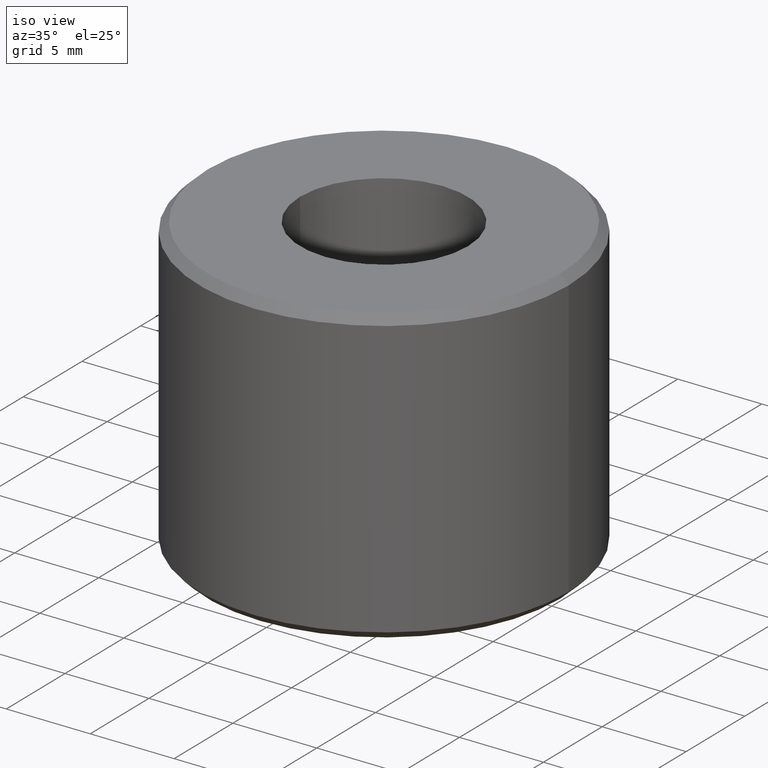
[diagram: clean part render]
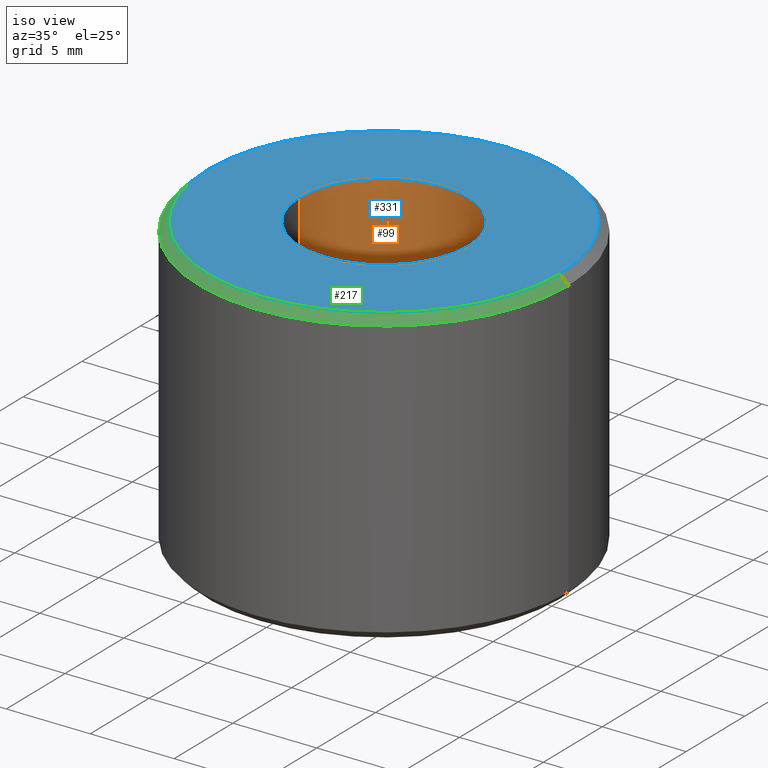
[diagram: same view with three faces highlighted in distinct colors, each labeled with its STEP entity id]
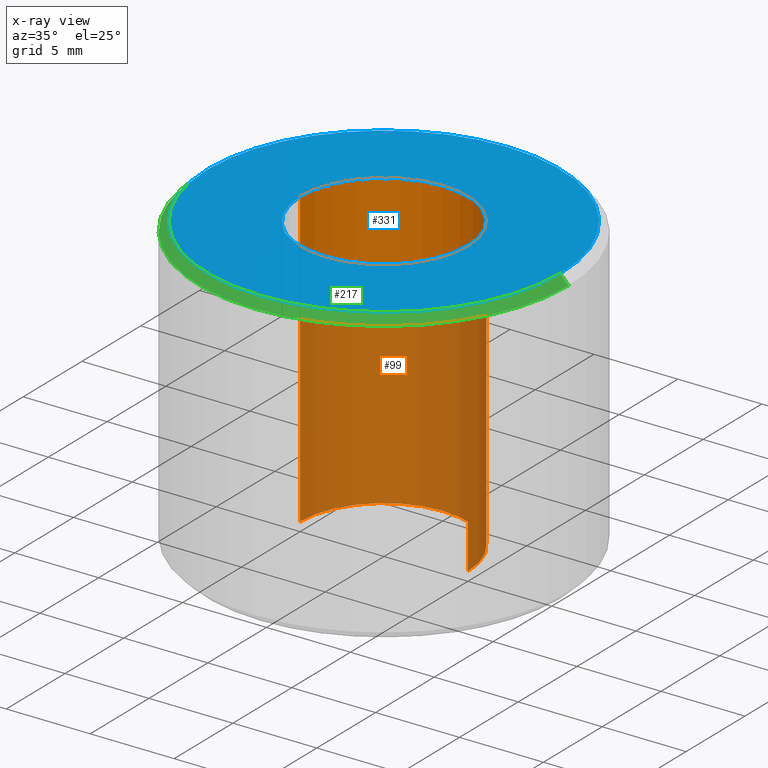
[diagram: x-ray of the same camera — body ghosted, the three highlighted faces saturated]
A machine part, iso view with three faces highlighted in distinct colors.
The next image is the same camera in x-ray (body ghosted, the three faces saturated) — at least one of them is partly hidden behind the body in this view.
Their STEP definitions:

[orange] entity #99 — the highlighted cylindrical surface (partial cylindrical patch) has radius 5 mm, axis along (-0, -0, 1).
#16 = VERTEX_POINT ( 'NONE', #78 ) ;
#27 = CARTESIAN_POINT ( 'NONE',  ( 5.000000000000000000, 0.0000000000000000000, 4.440892098500626200E-013 ) ) ;
#28 = EDGE_LOOP ( 'NONE', ( #182, #44, #324, #223 ) ) ;
#34 = DIRECTION ( 'NONE',  ( -0.0000000000000000000, -0.0000000000000000000, 1.000000000000000000 ) ) ;
#44 = ORIENTED_EDGE ( 'NONE', *, *, #216, .F. ) ;
#50 = CARTESIAN_POINT ( 'NONE',  ( 4.999999999999999100, 0.0000000000000000000, 116.0570158932235600 ) ) ;
#61 = VERTEX_POINT ( 'NONE', #181 ) ;
#78 = CARTESIAN_POINT ( 'NONE',  ( -5.000000000000000000, 6.123233995736766300E-016, 4.440892098500626200E-013 ) ) ;
#85 = CARTESIAN_POINT ( 'NONE',  ( 0.0000000000000000000, 0.0000000000000000000, 17.50000000000043300 ) ) ;
#89 = VECTOR ( 'NONE', #292, 1000.000000000000000 ) ;
#93 = EDGE_CURVE ( 'NONE', #61, #177, #168, .T. ) ;
#99 = ADVANCED_FACE ( 'NONE', ( #299 ), #128, .F. ) ;
#104 = AXIS2_PLACEMENT_3D ( 'NONE', #165, #110, #328 ) ;
#110 = DIRECTION ( 'NONE',  ( -0.0000000000000000000, -0.0000000000000000000, 1.000000000000000000 ) ) ;
#128 = CYLINDRICAL_SURFACE ( 'NONE', #104, 4.999999999999999100 ) ;
#136 = CARTESIAN_POINT ( 'NONE',  ( -4.999999999999999100, 6.123233995736765300E-016, 17.50000000000043300 ) ) ;
#140 = AXIS2_PLACEMENT_3D ( 'NONE', #193, #163, #268 ) ;
#157 = DIRECTION ( 'NONE',  ( -0.0000000000000000000, -0.0000000000000000000, 1.000000000000000000 ) ) ;
#158 = LINE ( 'NONE', #338, #89 ) ;
#161 = DIRECTION ( 'NONE',  ( 1.000000000000000000, 0.0000000000000000000, 0.0000000000000000000 ) ) ;
#163 = DIRECTION ( 'NONE',  ( -0.0000000000000000000, -0.0000000000000000000, 1.000000000000000000 ) ) ;
#165 = CARTESIAN_POINT ( 'NONE',  ( 0.0000000000000000000, 0.0000000000000000000, 116.0570158932235600 ) ) ;
#168 = CIRCLE ( 'NONE', #196, 4.999999999999999100 ) ;
#170 = EDGE_CURVE ( 'NONE', #274, #61, #303, .T. ) ;
#177 = VERTEX_POINT ( 'NONE', #136 ) ;
#181 = CARTESIAN_POINT ( 'NONE',  ( 4.999999999999999100, 0.0000000000000000000, 17.50000000000043300 ) ) ;
#182 = ORIENTED_EDGE ( 'NONE', *, *, #295, .F. ) ;
#193 = CARTESIAN_POINT ( 'NONE',  ( 0.0000000000000000000, 0.0000000000000000000, 4.440892098500626200E-013 ) ) ;
#196 = AXIS2_PLACEMENT_3D ( 'NONE', #85, #34, #161 ) ;
#216 = EDGE_CURVE ( 'NONE', #274, #16, #222, .T. ) ;
#222 = CIRCLE ( 'NONE', #140, 5.000000000000000000 ) ;
#223 = ORIENTED_EDGE ( 'NONE', *, *, #93, .T. ) ;
#232 = VECTOR ( 'NONE', #157, 1000.000000000000000 ) ;
#268 = DIRECTION ( 'NONE',  ( 1.000000000000000000, 0.0000000000000000000, 0.0000000000000000000 ) ) ;
#274 = VERTEX_POINT ( 'NONE', #27 ) ;
#292 = DIRECTION ( 'NONE',  ( -0.0000000000000000000, -0.0000000000000000000, 1.000000000000000000 ) ) ;
#295 = EDGE_CURVE ( 'NONE', #16, #177, #158, .T. ) ;
#299 = FACE_OUTER_BOUND ( 'NONE', #28, .T. ) ;
#303 = LINE ( 'NONE', #50, #232 ) ;
#324 = ORIENTED_EDGE ( 'NONE', *, *, #170, .T. ) ;
#328 = DIRECTION ( 'NONE',  ( 1.000000000000000000, 0.0000000000000000000, 0.0000000000000000000 ) ) ;
#338 = CARTESIAN_POINT ( 'NONE',  ( -4.999999999999999100, 6.123233995736765300E-016, 116.0570158932235600 ) ) ;

[blue] entity #331 — the highlighted planar face has unit normal (0, 0, -1).
#18 = PLANE ( 'NONE',  #282 ) ;
#34 = DIRECTION ( 'NONE',  ( -0.0000000000000000000, -0.0000000000000000000, 1.000000000000000000 ) ) ;
#53 = ORIENTED_EDGE ( 'NONE', *, *, #206, .F. ) ;
#61 = VERTEX_POINT ( 'NONE', #181 ) ;
#63 = CIRCLE ( 'NONE', #260, 4.999999999999999100 ) ;
#70 = CARTESIAN_POINT ( 'NONE',  ( 0.0000000000000000000, 0.0000000000000000000, 17.50000000000043300 ) ) ;
#80 = ORIENTED_EDGE ( 'NONE', *, *, #263, .T. ) ;
#85 = CARTESIAN_POINT ( 'NONE',  ( 0.0000000000000000000, 0.0000000000000000000, 17.50000000000043300 ) ) ;
#93 = EDGE_CURVE ( 'NONE', #61, #177, #168, .T. ) ;
#96 = DIRECTION ( 'NONE',  ( -0.0000000000000000000, -0.0000000000000000000, 1.000000000000000000 ) ) ;
#117 = CIRCLE ( 'NONE', #240, 10.50000000000006400 ) ;
#120 = EDGE_LOOP ( 'NONE', ( #208, #53 ) ) ;
#136 = CARTESIAN_POINT ( 'NONE',  ( -4.999999999999999100, 6.123233995736765300E-016, 17.50000000000043300 ) ) ;
#149 = DIRECTION ( 'NONE',  ( 1.000000000000000000, 0.0000000000000000000, 0.0000000000000000000 ) ) ;
#156 = DIRECTION ( 'NONE',  ( -0.0000000000000000000, -0.0000000000000000000, 1.000000000000000000 ) ) ;
#161 = DIRECTION ( 'NONE',  ( 1.000000000000000000, 0.0000000000000000000, 0.0000000000000000000 ) ) ;
#167 = VERTEX_POINT ( 'NONE', #245 ) ;
#168 = CIRCLE ( 'NONE', #196, 4.999999999999999100 ) ;
#174 = DIRECTION ( 'NONE',  ( 1.000000000000000000, 0.0000000000000000000, 0.0000000000000000000 ) ) ;
#177 = VERTEX_POINT ( 'NONE', #136 ) ;
#178 = FACE_BOUND ( 'NONE', #120, .T. ) ;
#181 = CARTESIAN_POINT ( 'NONE',  ( 4.999999999999999100, 0.0000000000000000000, 17.50000000000043300 ) ) ;
#189 = CIRCLE ( 'NONE', #248, 10.50000000000006400 ) ;
#196 = AXIS2_PLACEMENT_3D ( 'NONE', #85, #34, #161 ) ;
#204 = DIRECTION ( 'NONE',  ( -0.0000000000000000000, -0.0000000000000000000, 1.000000000000000000 ) ) ;
#206 = EDGE_CURVE ( 'NONE', #177, #61, #63, .T. ) ;
#208 = ORIENTED_EDGE ( 'NONE', *, *, #93, .F. ) ;
#210 = CARTESIAN_POINT ( 'NONE',  ( -10.50000000000006400, 0.0000000000000000000, 17.50000000000043300 ) ) ;
#234 = CARTESIAN_POINT ( 'NONE',  ( 0.0000000000000000000, 0.0000000000000000000, 17.50000000000043300 ) ) ;
#236 = DIRECTION ( 'NONE',  ( 1.000000000000000000, 0.0000000000000000000, 0.0000000000000000000 ) ) ;
#237 = VERTEX_POINT ( 'NONE', #210 ) ;
#240 = AXIS2_PLACEMENT_3D ( 'NONE', #234, #204, #149 ) ;
#245 = CARTESIAN_POINT ( 'NONE',  ( 10.50000000000006400, 1.316495309083412500E-015, 17.50000000000043300 ) ) ;
#248 = AXIS2_PLACEMENT_3D ( 'NONE', #70, #96, #174 ) ;
#255 = DIRECTION ( 'NONE',  ( -1.000000000000000000, 0.0000000000000000000, -0.0000000000000000000 ) ) ;
#259 = CARTESIAN_POINT ( 'NONE',  ( 0.0000000000000000000, 10.50000000000006400, 17.50000000000043700 ) ) ;
#260 = AXIS2_PLACEMENT_3D ( 'NONE', #326, #156, #236 ) ;
#263 = EDGE_CURVE ( 'NONE', #167, #237, #117, .T. ) ;
#282 = AXIS2_PLACEMENT_3D ( 'NONE', #259, #315, #255 ) ;
#314 = EDGE_LOOP ( 'NONE', ( #316, #80 ) ) ;
#315 = DIRECTION ( 'NONE',  ( 0.0000000000000000000, 0.0000000000000000000, -1.000000000000000000 ) ) ;
#316 = ORIENTED_EDGE ( 'NONE', *, *, #323, .T. ) ;
#323 = EDGE_CURVE ( 'NONE', #237, #167, #189, .T. ) ;
#326 = CARTESIAN_POINT ( 'NONE',  ( 0.0000000000000000000, 0.0000000000000000000, 17.50000000000043300 ) ) ;
#331 = ADVANCED_FACE ( 'NONE', ( #178, #343 ), #18, .F. ) ;
#343 = FACE_OUTER_BOUND ( 'NONE', #314, .T. ) ;

[green] entity #217 — the highlighted conical surface has half-angle 45 deg.
#2 = ORIENTED_EDGE ( 'NONE', *, *, #90, .T. ) ;
#3 = DIRECTION ( 'NONE',  ( -0.0000000000000000000, -0.0000000000000000000, 1.000000000000000000 ) ) ;
#11 = FACE_OUTER_BOUND ( 'NONE', #60, .T. ) ;
#12 = ORIENTED_EDGE ( 'NONE', *, *, #323, .F. ) ;
#39 = VERTEX_POINT ( 'NONE', #102 ) ;
#42 = LINE ( 'NONE', #179, #172 ) ;
#58 = DIRECTION ( 'NONE',  ( -0.7071067811865574500, 0.0000000000000000000, -0.7071067811865376900 ) ) ;
#60 = EDGE_LOOP ( 'NONE', ( #212, #12, #148, #2 ) ) ;
#69 = LINE ( 'NONE', #271, #105 ) ;
#70 = CARTESIAN_POINT ( 'NONE',  ( 0.0000000000000000000, 0.0000000000000000000, 17.50000000000043300 ) ) ;
#90 = EDGE_CURVE ( 'NONE', #334, #39, #214, .T. ) ;
#96 = DIRECTION ( 'NONE',  ( -0.0000000000000000000, -0.0000000000000000000, 1.000000000000000000 ) ) ;
#102 = CARTESIAN_POINT ( 'NONE',  ( 11.00000000000006400, 0.0000000000000000000, 17.00000000000044400 ) ) ;
#105 = VECTOR ( 'NONE', #58, 999.9999999999998900 ) ;
#124 = DIRECTION ( 'NONE',  ( 0.7071067811865574500, 8.659560562355054900E-017, -0.7071067811865376900 ) ) ;
#131 = DIRECTION ( 'NONE',  ( -1.000000000000000000, 0.0000000000000000000, 0.0000000000000000000 ) ) ;
#148 = ORIENTED_EDGE ( 'NONE', *, *, #162, .T. ) ;
#150 = CONICAL_SURFACE ( 'NONE', #155, 11.00000000000006400, 0.7853981633974621600 ) ;
#155 = AXIS2_PLACEMENT_3D ( 'NONE', #187, #273, #131 ) ;
#162 = EDGE_CURVE ( 'NONE', #237, #334, #69, .T. ) ;
#167 = VERTEX_POINT ( 'NONE', #245 ) ;
#172 = VECTOR ( 'NONE', #124, 999.9999999999998900 ) ;
#174 = DIRECTION ( 'NONE',  ( 1.000000000000000000, 0.0000000000000000000, 0.0000000000000000000 ) ) ;
#179 = CARTESIAN_POINT ( 'NONE',  ( 11.00000000000006400, 1.347111479062096300E-015, 17.00000000000044400 ) ) ;
#187 = CARTESIAN_POINT ( 'NONE',  ( 0.0000000000000000000, 0.0000000000000000000, 17.00000000000044400 ) ) ;
#189 = CIRCLE ( 'NONE', #248, 10.50000000000006400 ) ;
#210 = CARTESIAN_POINT ( 'NONE',  ( -10.50000000000006400, 0.0000000000000000000, 17.50000000000043300 ) ) ;
#212 = ORIENTED_EDGE ( 'NONE', *, *, #281, .F. ) ;
#214 = CIRCLE ( 'NONE', #276, 11.00000000000006400 ) ;
#217 = ADVANCED_FACE ( 'NONE', ( #11 ), #150, .T. ) ;
#237 = VERTEX_POINT ( 'NONE', #210 ) ;
#245 = CARTESIAN_POINT ( 'NONE',  ( 10.50000000000006400, 1.316495309083412500E-015, 17.50000000000043300 ) ) ;
#248 = AXIS2_PLACEMENT_3D ( 'NONE', #70, #96, #174 ) ;
#271 = CARTESIAN_POINT ( 'NONE',  ( -11.00000000000006400, 0.0000000000000000000, 17.00000000000044400 ) ) ;
#273 = DIRECTION ( 'NONE',  ( 0.0000000000000000000, 0.0000000000000000000, -1.000000000000000000 ) ) ;
#276 = AXIS2_PLACEMENT_3D ( 'NONE', #330, #3, #305 ) ;
#281 = EDGE_CURVE ( 'NONE', #167, #39, #42, .T. ) ;
#305 = DIRECTION ( 'NONE',  ( 1.000000000000000000, 0.0000000000000000000, 0.0000000000000000000 ) ) ;
#323 = EDGE_CURVE ( 'NONE', #237, #167, #189, .T. ) ;
#330 = CARTESIAN_POINT ( 'NONE',  ( 0.0000000000000000000, 0.0000000000000000000, 17.00000000000044400 ) ) ;
#334 = VERTEX_POINT ( 'NONE', #336 ) ;
#336 = CARTESIAN_POINT ( 'NONE',  ( -11.00000000000006400, 1.347111479062096300E-015, 17.00000000000044400 ) ) ;